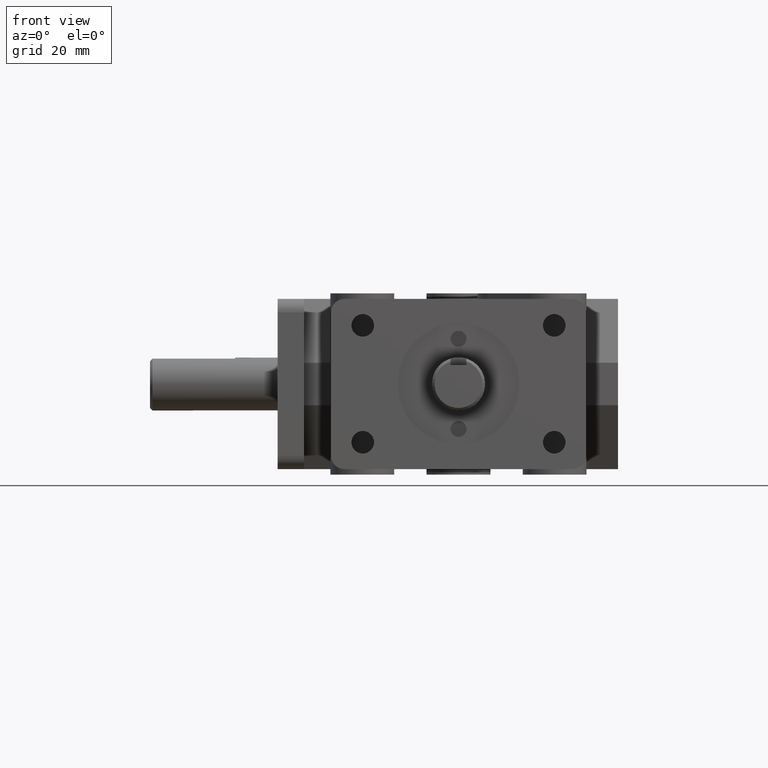
[diagram: clean part render]
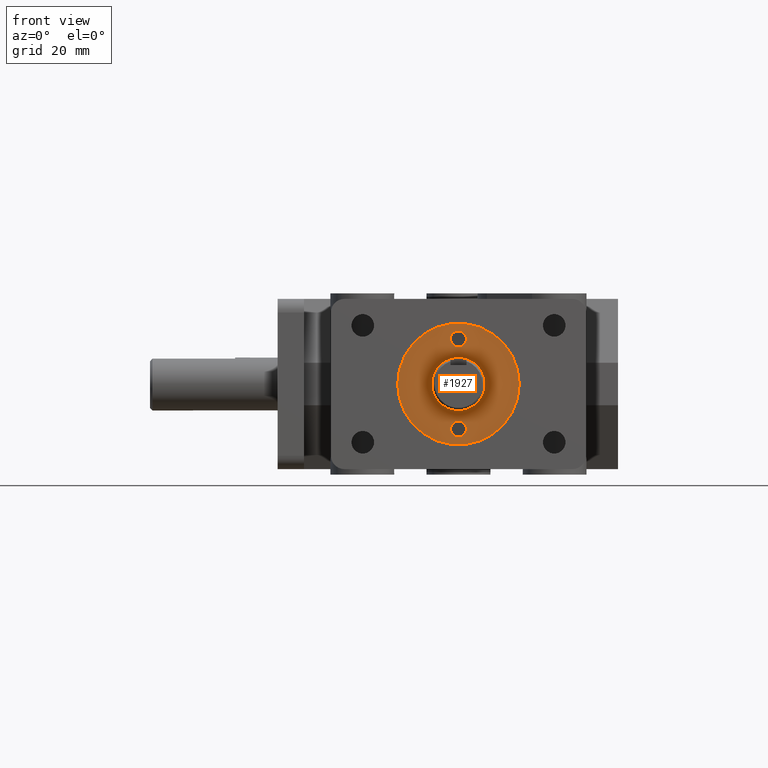
[diagram: same view with one face highlighted and labeled with its STEP entity id]
A machine part, front view. The second image highlights one B-rep face of the part: STEP entity #1927.
In plain terms, the highlighted planar face has unit normal (0, 1, 0).
Its self-contained STEP definition (entity closure, byte-faithful):
#25=FACE_BOUND('',#259,.T.);
#26=FACE_BOUND('',#260,.T.);
#27=FACE_BOUND('',#261,.T.);
#64=PLANE('',#2070);
#145=FACE_OUTER_BOUND('',#258,.T.);
#258=EDGE_LOOP('',(#1362));
#259=EDGE_LOOP('',(#1363));
#260=EDGE_LOOP('',(#1364));
#261=EDGE_LOOP('',(#1365));
#774=CIRCLE('',#2052,0.0935);
#776=CIRCLE('',#2056,0.0935);
#783=CIRCLE('',#2067,0.714);
#785=CIRCLE('',#2071,0.3125);
#859=VERTEX_POINT('',#2843);
#861=VERTEX_POINT('',#2850);
#868=VERTEX_POINT('',#2871);
#870=VERTEX_POINT('',#2878);
#1048=EDGE_CURVE('',#859,#859,#774,.T.);
#1051=EDGE_CURVE('',#861,#861,#776,.T.);
#1062=EDGE_CURVE('',#868,#868,#783,.T.);
#1064=EDGE_CURVE('',#870,#870,#785,.T.);
#1362=ORIENTED_EDGE('',*,*,#1062,.T.);
#1363=ORIENTED_EDGE('',*,*,#1064,.T.);
#1364=ORIENTED_EDGE('',*,*,#1048,.T.);
#1365=ORIENTED_EDGE('',*,*,#1051,.T.);
#1927=ADVANCED_FACE('',(#145,#25,#26,#27),#64,.F.);
#2052=AXIS2_PLACEMENT_3D('',#2844,#2270,#2271);
#2056=AXIS2_PLACEMENT_3D('',#2851,#2279,#2280);
#2067=AXIS2_PLACEMENT_3D('',#2873,#2305,#2306);
#2070=AXIS2_PLACEMENT_3D('',#2877,#2311,#2312);
#2071=AXIS2_PLACEMENT_3D('',#2879,#2313,#2314);
#2270=DIRECTION('center_axis',(0.,1.,0.));
#2271=DIRECTION('ref_axis',(1.,0.,0.));
#2279=DIRECTION('center_axis',(0.,1.,0.));
#2280=DIRECTION('ref_axis',(1.,0.,0.));
#2305=DIRECTION('center_axis',(0.,-1.,0.));
#2306=DIRECTION('ref_axis',(1.,0.,0.));
#2311=DIRECTION('center_axis',(0.,1.,0.));
#2312=DIRECTION('ref_axis',(0.,0.,-1.));
#2313=DIRECTION('center_axis',(0.,1.,0.));
#2314=DIRECTION('ref_axis',(1.,0.,0.));
#2843=CARTESIAN_POINT('',(-0.0935000000000001,0.0599999999999999,-0.53));
#2844=CARTESIAN_POINT('Origin',(-9.7356205128879E-17,0.0599999999999999,
-0.53));
#2850=CARTESIAN_POINT('',(-0.0934999999999998,0.0599999999999999,0.53));
#2851=CARTESIAN_POINT('Origin',(1.62260341881465E-16,0.0599999999999999,
0.53));
#2871=CARTESIAN_POINT('',(-0.714,0.0599999999999999,8.7439781459121E-17));
#2873=CARTESIAN_POINT('Origin',(0.,0.0599999999999999,0.));
#2877=CARTESIAN_POINT('Origin',(0.0540909090909091,0.0599999999999999,-8.20154589760046E-18));
#2878=CARTESIAN_POINT('',(-0.3125,0.0599999999999999,-3.82702124733548E-17));
#2879=CARTESIAN_POINT('Origin',(0.,0.0599999999999999,0.));